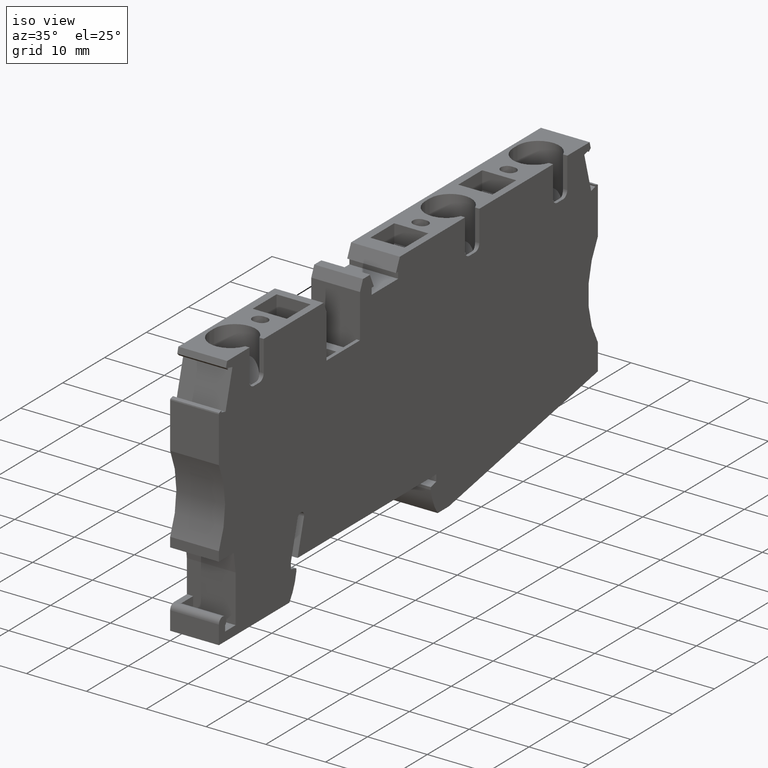
[diagram: clean part render]
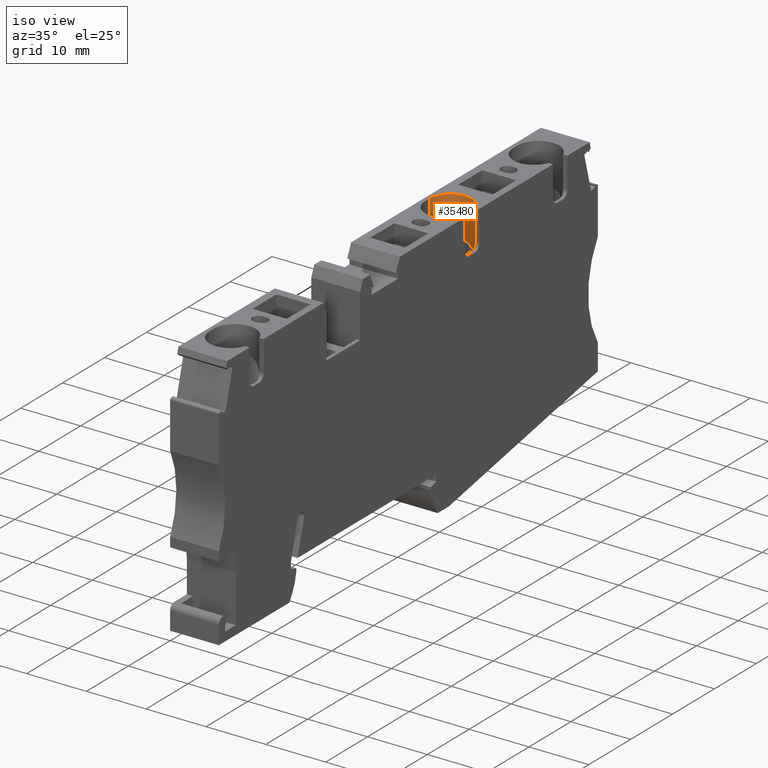
[diagram: same view with one face highlighted and labeled with its STEP entity id]
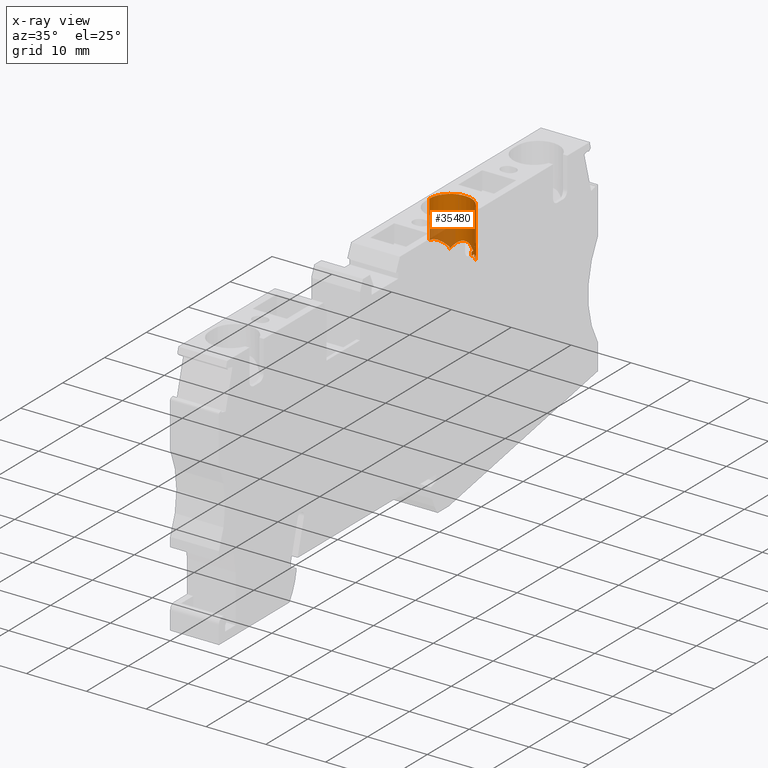
[diagram: x-ray of the same camera — body ghosted, the highlighted face saturated]
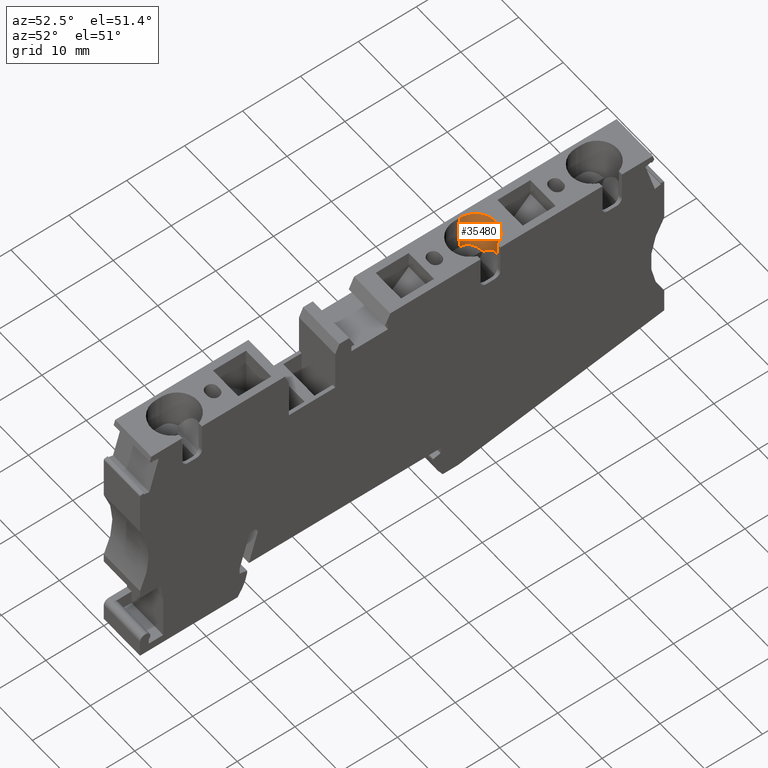
[diagram: same view with one face highlighted and labeled with its STEP entity id]
A machine part, iso view. The second image highlights one B-rep face of the part: STEP entity #35480.
The next image is the same camera in x-ray: the body ghosted, the highlighted face saturated — about 21% of this face is hidden behind the body in this view.
A second angle (auxiliary view) of the same face is appended — the face is thin or edge-on in the first view.
In plain terms, the highlighted cylindrical surface (edge-blend (fillet) strip) has radius 3.5 mm, axis along (-0, 0, -1).
Its self-contained STEP definition (entity closure, byte-faithful):
#27510=CARTESIAN_POINT('',(29.4321672216753,-2.19999999998852,
52.9578564445547));
#27520=VERTEX_POINT('',#27510);
#27550=CARTESIAN_POINT('',(28.2321672216755,-2.19999999998867,49.67));
#27560=DIRECTION('',(3.99680288865056E-15,-1.,-1.66376680437718E-16));
#27570=DIRECTION('',(-1.,-3.99680288865056E-15,1.04083408558602E-17));
#27580=AXIS2_PLACEMENT_3D('',#27550,#27560,#27570);
#27590=CIRCLE('',#27580,3.5);
#27600=CARTESIAN_POINT('',(28.2321672216755,-2.19999999998867,46.17));
#27610=VERTEX_POINT('',#27600);
#27620=EDGE_CURVE('',#27610,#27520,#27590,.T.);
#33530=CARTESIAN_POINT('',(30.6816569644586,-11.2794182120492,52.17));
#33540=VERTEX_POINT('',#33530);
#33710=CARTESIAN_POINT('',(31.0321672216755,-10.5277465397381,47.57));
#33720=VERTEX_POINT('',#33710);
#33750=CARTESIAN_POINT('',(28.2321672216755,-16.5323659171649,49.67));
#33760=DIRECTION('',(-0.906307787036652,0.422618261740695,
7.97469838485741E-17));
#33770=DIRECTION('',(0.422618261740695,0.906307787036652,
1.46389726141904E-16));
#33780=AXIS2_PLACEMENT_3D('',#33750,#33760,#33770);
#33790=ELLIPSE('',#33780,8.28170554103376,3.5);
#33800=EDGE_CURVE('',#33540,#33720,#33790,.T.);
#33920=CARTESIAN_POINT('',(28.2321672216755,-7.10051607028246,49.67));
#33930=DIRECTION('',(3.99680288865056E-15,-1.,-1.66376680437718E-16));
#33940=DIRECTION('',(-1.,-3.99680288865056E-15,1.04083408558602E-17));
#33950=AXIS2_PLACEMENT_3D('',#33920,#33930,#33940);
#33960=CYLINDRICAL_SURFACE('',#33950,3.5);
#33970=CARTESIAN_POINT('',(28.2321672216755,-13.1793839814785,49.67));
#33980=DIRECTION('',(-2.56739074444567E-15,0.64278760968654,
-0.766044443118978));
#33990=DIRECTION('',(3.05311331771918E-15,-0.766044443118978,
-0.64278760968654));
#34000=AXIS2_PLACEMENT_3D('',#33970,#33980,#33990);
#34010=ELLIPSE('',#34000,5.44503339401144,3.5);
#34020=CARTESIAN_POINT('',(28.2321672216755,-9.00824640739871,53.17));
#34030=VERTEX_POINT('',#34020);
#34040=CARTESIAN_POINT('',(30.6816569644586,-10.1999999999929,52.17));
#34050=VERTEX_POINT('',#34040);
#34060=EDGE_CURVE('',#34030,#34050,#34010,.T.);
#34070=ORIENTED_EDGE('',*,*,#34060,.F.);
#34080=CARTESIAN_POINT('',(30.6816569644586,-7.10051607028246,52.17));
#34090=DIRECTION('',(3.99680288865056E-15,-1.,-1.66376680437718E-16));
#34100=VECTOR('',#34090,1.);
#34110=LINE('',#34080,#34100);
#34120=EDGE_CURVE('',#34050,#33540,#34110,.T.);
#34130=ORIENTED_EDGE('',*,*,#34120,.F.);
#34140=ORIENTED_EDGE('',*,*,#33800,.F.);
#34150=CARTESIAN_POINT('',(31.0321672216755,-7.10051607028245,47.57));
#34160=DIRECTION('',(3.99680288865056E-15,-1.,-1.66376680437718E-16));
#34170=VECTOR('',#34160,1.);
#34180=LINE('',#34150,#34170);
#34190=CARTESIAN_POINT('',(31.0321672216755,-10.1999999999929,47.57));
#34200=VERTEX_POINT('',#34190);
#34210=EDGE_CURVE('',#34200,#33720,#34180,.T.);
#34220=ORIENTED_EDGE('',*,*,#34210,.T.);
#34230=CARTESIAN_POINT('',(28.2321672216755,-12.7026825444408,49.67));
#34240=DIRECTION('',(-2.55351295663786E-15,0.642787609686539,
0.766044443118978));
#34250=DIRECTION('',(-3.05311331771918E-15,0.766044443118978,
-0.642787609686539));
#34260=AXIS2_PLACEMENT_3D('',#34230,#34240,#34250);
#34270=ELLIPSE('',#34260,5.44503339401144,3.5);
#34280=CARTESIAN_POINT('',(28.2321672216755,-8.53154497036103,46.17));
#34290=VERTEX_POINT('',#34280);
#34300=EDGE_CURVE('',#34200,#34290,#34270,.T.);
#34310=ORIENTED_EDGE('',*,*,#34300,.F.);
#34320=CARTESIAN_POINT('',(28.2321672216755,-7.10051607028246,46.17));
#34330=DIRECTION('',(3.99680288865056E-15,-1.,-1.66376680437718E-16));
#34340=VECTOR('',#34330,1.);
#34350=LINE('',#34320,#34340);
#34360=EDGE_CURVE('',#27610,#34290,#34350,.T.);
#34370=ORIENTED_EDGE('',*,*,#34360,.T.);
#34380=ORIENTED_EDGE('',*,*,#27620,.F.);
#34390=CARTESIAN_POINT('',(29.4321672216754,-7.10051607028246,
52.9578564445547));
#34400=DIRECTION('',(3.99680288865056E-15,-1.,-1.66376680437718E-16));
#34410=VECTOR('',#34400,1.);
#34420=LINE('',#34390,#34410);
#34430=CARTESIAN_POINT('',(29.4321672216754,-7.39999999939913,
52.9578564445547));
#34440=VERTEX_POINT('',#34430);
#34450=EDGE_CURVE('',#27520,#34440,#34420,.T.);
#34460=ORIENTED_EDGE('',*,*,#34450,.F.);
#34470=CARTESIAN_POINT('',(28.4321672216754,-7.39999999999291,53.67));
#34480=DIRECTION('',(-1.04083408558608E-17,1.66376680437718E-16,-1.));
#34490=DIRECTION('',(0.992546151641322,0.121869343405151,
9.94545814141761E-18));
#34500=AXIS2_PLACEMENT_3D('',#34470,#34480,#34490);
#34510=CYLINDRICAL_SURFACE('',#34500,1.);
#34520=CARTESIAN_POINT('',(29.4321672216754,-7.39999999999291,
52.9578564445547));
#34530=CARTESIAN_POINT('',(29.4321672216754,-7.4165676012037,
52.9578564445547));
#34540=CARTESIAN_POINT('',(29.4317551768999,-7.43315673781325,
52.9580069205383));
#34550=CARTESIAN_POINT('',(29.430929776787,-7.44973287148672,
52.9583078226441));
#34560=CARTESIAN_POINT('',(29.4301043778462,-7.4663089816187,
52.9586087243226));
#34570=CARTESIAN_POINT('',(29.4288656325316,-7.4828717385932,
52.9590600470757));
#34580=CARTESIAN_POINT('',(29.4272161596037,-7.49938617170552,
52.9596592583361));
#34590=CARTESIAN_POINT('',(29.4255666860476,-7.51590061110797,
52.9602584698248));
#34600=CARTESIAN_POINT('',(29.4235065230373,-7.53236638093995,
52.9610055506076));
#34610=CARTESIAN_POINT('',(29.4210421785125,-7.54874918399214,
52.9618955537814));
#34620=CARTESIAN_POINT('',(29.4185778286631,-7.56513202244123,
52.9627855588781));
#34630=CARTESIAN_POINT('',(29.4157093621975,-7.58143156547446,
52.9638184544811));
#34640=CARTESIAN_POINT('',(29.4124468839657,-7.59761524156102,
52.9649870893198));
#34650=CARTESIAN_POINT('',(29.4059180620228,-7.63000176862528,
52.9673257436298));
#34660=CARTESIAN_POINT('',(29.3978329231398,-7.66184120522388,
52.9702010203545));
#34670=CARTESIAN_POINT('',(29.3882396027012,-7.69313069139113,
52.9735581801793));
#34680=CARTESIAN_POINT('',(29.3834359048287,-7.70879838841991,
52.9752392229018));
#34690=CARTESIAN_POINT('',(29.3782408999667,-7.72436741398231,
52.9770455026049));
#34700=CARTESIAN_POINT('',(29.3726611320832,-7.73981054203923,
52.9789686671715));
#34710=CARTESIAN_POINT('',(29.3670813823721,-7.75525361980036,
52.9808918254746));
#34720=CARTESIAN_POINT('',(29.3611169324386,-7.77057057389595,
52.9829318360134));
#34730=CARTESIAN_POINT('',(29.3547773246104,-7.78573384341633,
52.9850786652489));
#34740=CARTESIAN_POINT('',(29.3484377283556,-7.80089708525508,
52.9872254905652));
#34750=CARTESIAN_POINT('',(29.3417230559749,-7.81590642359753,
52.9894790940421));
#34760=CARTESIAN_POINT('',(29.3346457684841,-7.83073480535482,
52.9918279687285));
#34770=CARTESIAN_POINT('',(29.3275684847901,-7.84556317915686,
52.9941768421547));
#34780=CARTESIAN_POINT('',(29.3201286826482,-7.86021039042904,
52.9966209406962));
#34790=CARTESIAN_POINT('',(29.3123415242836,-7.87465060520505,
52.9991475599596));
#34800=CARTESIAN_POINT('',(29.3045543607772,-7.88909082951581,
53.0016741808913));
#34810=CARTESIAN_POINT('',(29.2964199489522,-7.90332386807143,
53.0042832731496));
#34820=CARTESIAN_POINT('',(29.2879558177964,-7.91732569889971,
53.0069612584357));
#34830=CARTESIAN_POINT('',(29.2794916712352,-7.93132755521244,
53.009639248596));
#34840=CARTESIAN_POINT('',(29.270697921372,-7.94509803357323,
53.012386081167));
#34850=CARTESIAN_POINT('',(29.2615940230668,-7.95861541432886,
53.0151876570048));
#34860=CARTESIAN_POINT('',(29.2524900974536,-7.97213283563096,
53.0179892412461));
#34870=CARTESIAN_POINT('',(29.2430761448875,-7.98539700977962,
53.0208455188173));
#34880=CARTESIAN_POINT('',(29.2333729993628,-7.99838892184924,
53.0237422367745));
#34890=CARTESIAN_POINT('',(29.2236706138115,-8.01137981636122,
53.0266387278539));
#34900=CARTESIAN_POINT('',(29.2136879070259,-8.02409028254014,
53.0295732965708));
#34910=CARTESIAN_POINT('',(29.203358789978,-8.03660314558597,
53.0325566073537));
#34920=CARTESIAN_POINT('',(29.1827121381489,-8.06161484072834,
53.0385198836674));
#34930=CARTESIAN_POINT('',(29.1607810559441,-8.08569949706336,
53.0446478258064));
#34940=CARTESIAN_POINT('',(29.1376868854646,-8.10869034422913,
53.0508333497068));
#34950=CARTESIAN_POINT('',(29.1145929408222,-8.13168096656816,
53.0570188131193));
#34960=CARTESIAN_POINT('',(29.0903393665689,-8.1535739969312,
53.0632605053256));
#34970=CARTESIAN_POINT('',(29.0650809501861,-8.17422232742077,
53.0694491790365));
#34980=CARTESIAN_POINT('',(29.039822436992,-8.19487073705191,
53.0756378764675));
#34990=CARTESIAN_POINT('',(29.0135631967021,-8.21427115227666,
53.0817721963199));
#35000=CARTESIAN_POINT('',(28.9864806928918,-8.23230798123265,
53.0877494330538));
#35010=CARTESIAN_POINT('',(28.9593870767223,-8.25035221097122,
53.0937291223379));
#35020=CARTESIAN_POINT('',(28.9315237948386,-8.26700247255503,
53.0995406497401));
#35030=CARTESIAN_POINT('',(28.9029315986633,-8.28225897634801,
53.1051237460336));
#35040=CARTESIAN_POINT('',(28.8743069791422,-8.29753278090712,
53.1107131735183));
#35050=CARTESIAN_POINT('',(28.844841551275,-8.31146159089996,
53.1160938560154));
#35060=CARTESIAN_POINT('',(28.8147274524061,-8.3239305546692,
53.1211771292663));
#35070=CARTESIAN_POINT('',(28.7996707886623,-8.33016487685573,
53.123718700787));
#35080=CARTESIAN_POINT('',(28.7844530484819,-8.33603449651456,
53.1261860112886));
#35090=CARTESIAN_POINT('',(28.769100576851,-8.34152849885553,
53.1285694401153));
#35100=CARTESIAN_POINT('',(28.7537480830361,-8.34702250913521,
53.1309528723861));
#35110=CARTESIAN_POINT('',(28.7382610589248,-8.35214083730132,
53.1332523870434));
#35120=CARTESIAN_POINT('',(28.722666302994,-8.35687527073253,
53.1354596594428));
#35130=CARTESIAN_POINT('',(28.7070754134391,-8.36160853036535,
53.1376663845977));
#35140=CARTESIAN_POINT('',(28.6913425357241,-8.36596851467104,
53.1397857761675));
#35150=CARTESIAN_POINT('',(28.6754930722212,-8.36994460173889,
53.1418096419933));
#35160=CARTESIAN_POINT('',(28.6596438361778,-8.37392063174495,
53.1438334787741));
#35170=CARTESIAN_POINT('',(28.643679164505,-8.37751243438646,
53.1457616259082));
#35180=CARTESIAN_POINT('',(28.6276283796861,-8.38071144364447,
53.147586874904));
#35190=CARTESIAN_POINT('',(28.5955135674716,-8.38711210147853,
53.1512388788034));
#35200=CARTESIAN_POINT('',(28.5631182634044,-8.39193117611406,
53.1544719026084));
#35210=CARTESIAN_POINT('',(28.5304802947458,-8.39515553540607,
53.1572638716385));
#35220=CARTESIAN_POINT('',(28.4978383833836,-8.39838028420433,
53.1600561779416));
#35230=CARTESIAN_POINT('',(28.4649981956954,-8.39999999999291,
53.1624019158033));
#35240=CARTESIAN_POINT('',(28.4321672216754,-8.39999999999291,
53.1642810419312));
#35250=B_SPLINE_CURVE_WITH_KNOTS('',3,(#34520,#34530,#34540,#34550,
#34560,#34570,#34580,#34590,#34600,#34610,#34620,#34630,#34640,#34650,
#34660,#34670,#34680,#34690,#34700,#34710,#34720,#34730,#34740,#34750,
#34760,#34770,#34780,#34790,#34800,#34810,#34820,#34830,#34840,#34850,
#34860,#34870,#34880,#34890,#34900,#34910,#34920,#34930,#34940,#34950,
#34960,#34970,#34980,#34990,#35000,#35010,#35020,#35030,#35040,#35050,
#35060,#35070,#35080,#35090,#35100,#35110,#35120,#35130,#35140,#35150,
#35160,#35170,#35180,#35190,#35200,#35210,#35220,#35230,#35240),
.UNSPECIFIED.,.F.,.F.,(4,3,3,3,3,3,3,3,3,3,3,3,3,3,3,3,3,3,3,3,3,3,3,3,4
),(0.,0.0497561242286869,0.0995722525632569,0.149375871753619,
0.199094007017326,0.298045183403467,0.347557824435132,0.397223107585268,
0.446986968549756,0.496788253795213,0.546561590882992,0.596240074209892,
0.645757941555273,0.695147644518371,0.794399728439586,0.894000173168873,
0.993471198218963,1.09239041928398,1.19129424120258,1.24075777440883,
1.29015048308125,1.33951594002318,1.38892082974105,1.48765454128524,
1.58637955359203),.UNSPECIFIED.);
#35260=SURFACE_CURVE('',#35250,(#34510,#33960),.CURVE_3D.);
#35270=CARTESIAN_POINT('',(28.4321672216608,-8.39999999999292,
53.1642810419321));
#35280=VERTEX_POINT('',#35270);
#35290=EDGE_CURVE('',#34440,#35280,#35260,.T.);
#35300=ORIENTED_EDGE('',*,*,#35290,.F.);
#35310=CARTESIAN_POINT('',(28.2321672216755,-8.39999999999291,49.67));
#35320=DIRECTION('',(3.99680288865056E-15,-1.,-1.66376680437718E-16));
#35330=DIRECTION('',(-1.,-3.99680288865056E-15,1.04083408558602E-17));
#35340=AXIS2_PLACEMENT_3D('',#35310,#35320,#35330);
#35350=CIRCLE('',#35340,3.5);
#35360=CARTESIAN_POINT('',(28.2321672216755,-8.39999999999291,53.17));
#35370=VERTEX_POINT('',#35360);
#35380=EDGE_CURVE('',#35280,#35370,#35350,.T.);
#35390=ORIENTED_EDGE('',*,*,#35380,.F.);
#35400=CARTESIAN_POINT('',(28.2321672216755,-7.10051607028246,53.17));
#35410=DIRECTION('',(3.99680288865056E-15,-1.,-1.66376680437718E-16));
#35420=VECTOR('',#35410,1.);
#35430=LINE('',#35400,#35420);
#35440=EDGE_CURVE('',#35370,#34030,#35430,.T.);
#35450=ORIENTED_EDGE('',*,*,#35440,.F.);
#35460=EDGE_LOOP('',(#35450,#35390,#35300,#34460,#34380,#34370,#34310,
#34220,#34140,#34130,#34070));
#35470=FACE_OUTER_BOUND('',#35460,.T.);
#35480=ADVANCED_FACE('',(#35470),#33960,.F.);